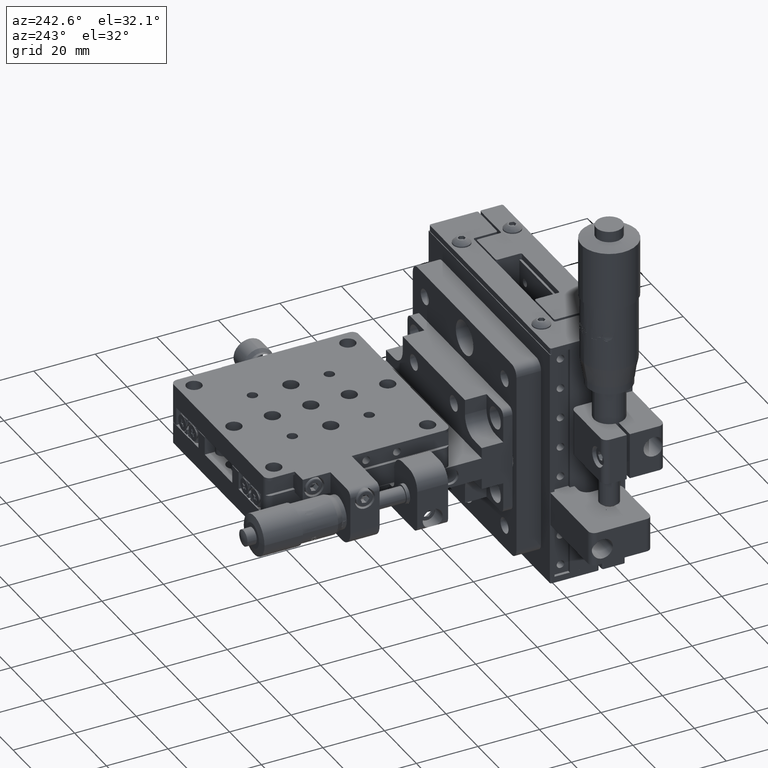
[diagram: clean part render]
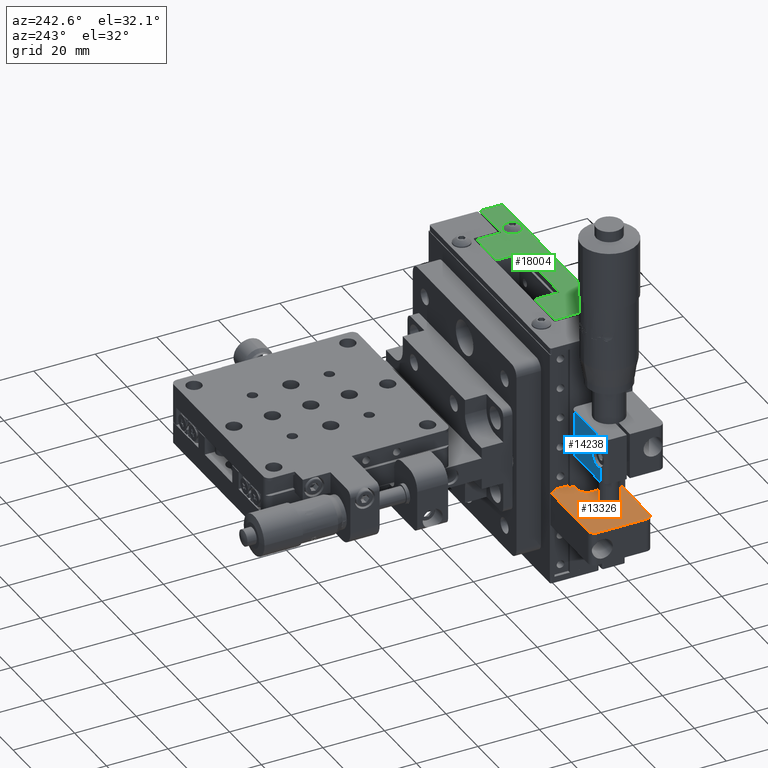
[diagram: same view with three faces highlighted in distinct colors, each labeled with its STEP entity id]
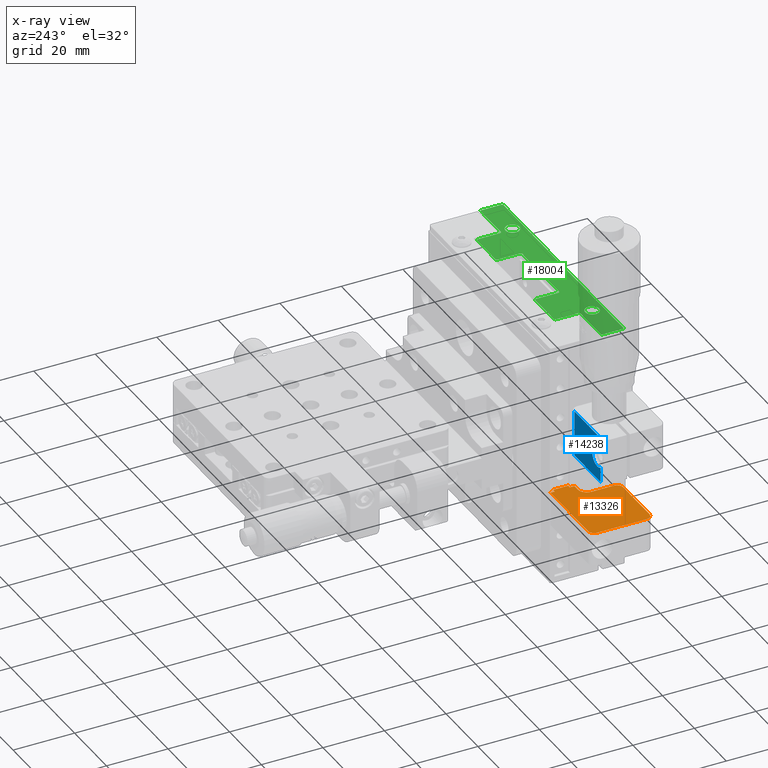
[diagram: x-ray of the same camera — body ghosted, the three highlighted faces saturated]
A machine part, auxiliary view with three faces highlighted in distinct colors.
The next image is the same camera in x-ray (body ghosted, the three faces saturated) — at least one of them is partly hidden behind the body in this view.
Their STEP definitions:

[orange] entity #13326 — the highlighted planar face has unit normal (0, -0, 1).
#67 = VERTEX_POINT ( 'NONE', #49749 ) ;
#473 = CARTESIAN_POINT ( 'NONE',  ( -43.00000000000022700, 6.300000000000067300, -9.000000000000079900 ) ) ;
#494 = ORIENTED_EDGE ( 'NONE', *, *, #57609, .T. ) ;
#703 = CIRCLE ( 'NONE', #41174, 2.000000000000001800 ) ;
#2076 = DIRECTION ( 'NONE',  ( -6.763865964687970900E-030, 1.000000000000000000, 1.665334536937734300E-016 ) ) ;
#2350 = ORIENTED_EDGE ( 'NONE', *, *, #14836, .F. ) ;
#2406 = VERTEX_POINT ( 'NONE', #25358 ) ;
#2820 = CIRCLE ( 'NONE', #16040, 3.000000000000002700 ) ;
#3248 = ORIENTED_EDGE ( 'NONE', *, *, #61585, .T. ) ;
#3545 = VERTEX_POINT ( 'NONE', #7010 ) ;
#4403 = AXIS2_PLACEMENT_3D ( 'NONE', #21713, #57077, #26808 ) ;
#5183 = ORIENTED_EDGE ( 'NONE', *, *, #57920, .T. ) ;
#5719 = LINE ( 'NONE', #473, #19179 ) ;
#5957 = EDGE_CURVE ( 'NONE', #9582, #18124, #35135, .T. ) ;
#6551 = VECTOR ( 'NONE', #2076, 1000.000000000000000 ) ;
#7010 = CARTESIAN_POINT ( 'NONE',  ( -38.00000000000022700, 16.50000000000006000, -9.000000000000078200 ) ) ;
#8257 = DIRECTION ( 'NONE',  ( 1.000000000000000000, 2.483679256281779400E-030, -5.551115123125384000E-017 ) ) ;
#9582 = VERTEX_POINT ( 'NONE', #29175 ) ;
#10372 = VECTOR ( 'NONE', #44894, 1000.000000000000000 ) ;
#13136 = DIRECTION ( 'NONE',  ( 5.551115123126540700E-017, -5.551115123125782700E-017, 1.000000000000000000 ) ) ;
#13208 = VERTEX_POINT ( 'NONE', #62117 ) ;
#13224 = CARTESIAN_POINT ( 'NONE',  ( -61.50000000000022700, 6.300000000000067300, -9.000000000000078200 ) ) ;
#13326 = ADVANCED_FACE ( 'NONE', ( #20447, #45748 ), #58131, .T. ) ;
#13550 = CARTESIAN_POINT ( 'NONE',  ( -38.00000000000015600, 18.00000000000005700, -9.000000000000078200 ) ) ;
#14595 = CIRCLE ( 'NONE', #4403, 2.000000000000001800 ) ;
#14653 = DIRECTION ( 'NONE',  ( -1.000000000000000000, -2.483679256281779400E-030, 5.551115123125384000E-017 ) ) ;
#14836 = EDGE_CURVE ( 'NONE', #23698, #64247, #15539, .T. ) ;
#14897 = VECTOR ( 'NONE', #63500, 1000.000000000000000 ) ;
#15539 = CIRCLE ( 'NONE', #32314, 3.000000000000002700 ) ;
#16040 = AXIS2_PLACEMENT_3D ( 'NONE', #22214, #57575, #27306 ) ;
#16739 = CARTESIAN_POINT ( 'NONE',  ( -38.00000000000022700, 24.30000000000007200, -9.000000000000078200 ) ) ;
#16995 = ORIENTED_EDGE ( 'NONE', *, *, #53604, .T. ) ;
#17961 = CARTESIAN_POINT ( 'NONE',  ( -37.00000000000022700, 23.00000000000006000, -9.000000000000078200 ) ) ;
#18124 = VERTEX_POINT ( 'NONE', #30327 ) ;
#18310 = DIRECTION ( 'NONE',  ( -1.000000000000000000, -2.483679256281779400E-030, 5.551115123125384000E-017 ) ) ;
#18440 = CARTESIAN_POINT ( 'NONE',  ( -61.50000000000016300, 22.30000000000006800, -9.000000000000074600 ) ) ;
#18598 = CARTESIAN_POINT ( 'NONE',  ( -54.50000000000022000, 12.30000000000007000, -9.000000000000078200 ) ) ;
#18845 = EDGE_CURVE ( 'NONE', #64247, #23698, #28451, .T. ) ;
#19179 = VECTOR ( 'NONE', #30840, 1000.000000000000000 ) ;
#19776 = CARTESIAN_POINT ( 'NONE',  ( -37.00000000000022700, 23.00000000000006000, -9.000000000000078200 ) ) ;
#20186 = VECTOR ( 'NONE', #51870, 1000.000000000000000 ) ;
#20447 = FACE_BOUND ( 'NONE', #33681, .T. ) ;
#21673 = VECTOR ( 'NONE', #47802, 1000.000000000000000 ) ;
#21713 = CARTESIAN_POINT ( 'NONE',  ( -45.00000000000022700, 6.300000000000067300, -9.000000000000079900 ) ) ;
#21952 = EDGE_CURVE ( 'NONE', #13208, #67, #5719, .T. ) ;
#22075 = ORIENTED_EDGE ( 'NONE', *, *, #59936, .T. ) ;
#22214 = CARTESIAN_POINT ( 'NONE',  ( -40.00000000000018500, 13.50000000000005700, -9.000000000000078200 ) ) ;
#22483 = EDGE_CURVE ( 'NONE', #3545, #57793, #37272, .T. ) ;
#22488 = ORIENTED_EDGE ( 'NONE', *, *, #21952, .T. ) ;
#22687 = CARTESIAN_POINT ( 'NONE',  ( -51.50000000000022000, 12.30000000000007000, -9.000000000000078200 ) ) ;
#22942 = VERTEX_POINT ( 'NONE', #65335 ) ;
#23093 = EDGE_CURVE ( 'NONE', #57793, #53868, #46595, .T. ) ;
#23539 = DIRECTION ( 'NONE',  ( -1.000000000000000000, 0.0000000000000000000, 0.0000000000000000000 ) ) ;
#23698 = VERTEX_POINT ( 'NONE', #18598 ) ;
#24028 = EDGE_CURVE ( 'NONE', #26526, #3545, #41694, .T. ) ;
#24276 = CARTESIAN_POINT ( 'NONE',  ( -40.00000000000018500, 16.50000000000006000, -9.000000000000078200 ) ) ;
#25271 = CARTESIAN_POINT ( 'NONE',  ( -51.50000000000022000, 12.30000000000007000, -9.000000000000078200 ) ) ;
#25358 = CARTESIAN_POINT ( 'NONE',  ( -45.00000000000022700, 4.300000000000067300, -9.000000000000079900 ) ) ;
#26485 = CARTESIAN_POINT ( 'NONE',  ( -61.50000000000022700, 4.300000000000067300, -9.000000000000078200 ) ) ;
#26526 = VERTEX_POINT ( 'NONE', #24276 ) ;
#26808 = DIRECTION ( 'NONE',  ( -1.000000000000000000, 0.0000000000000000000, 0.0000000000000000000 ) ) ;
#27306 = DIRECTION ( 'NONE',  ( -1.000000000000000000, 6.360652745248286900E-015, 0.0000000000000000000 ) ) ;
#27610 = CARTESIAN_POINT ( 'NONE',  ( -48.50000000000021300, 12.30000000000007000, -9.000000000000078200 ) ) ;
#27802 = DIRECTION ( 'NONE',  ( -1.000000000000000000, 0.0000000000000000000, 0.0000000000000000000 ) ) ;
#28394 = LINE ( 'NONE', #17961, #14897 ) ;
#28451 = CIRCLE ( 'NONE', #34129, 3.000000000000002700 ) ;
#29004 = LINE ( 'NONE', #26485, #52675 ) ;
#29175 = CARTESIAN_POINT ( 'NONE',  ( -63.50000000000017100, 22.30000000000006800, -9.000000000000074600 ) ) ;
#30311 = VERTEX_POINT ( 'NONE', #55092 ) ;
#30327 = CARTESIAN_POINT ( 'NONE',  ( -63.50000000000022000, 6.300000000000067300, -9.000000000000078200 ) ) ;
#30351 = DIRECTION ( 'NONE',  ( -1.000000000000000000, 0.0000000000000000000, 0.0000000000000000000 ) ) ;
#30840 = DIRECTION ( 'NONE',  ( 5.612340657572020100E-015, 1.000000000000000000, 1.665334536937731400E-016 ) ) ;
#32116 = CIRCLE ( 'NONE', #50578, 1.999999999999994900 ) ;
#32314 = AXIS2_PLACEMENT_3D ( 'NONE', #25271, #60601, #30351 ) ;
#32587 = CARTESIAN_POINT ( 'NONE',  ( -63.50000000000017100, 22.30000000000006800, -9.000000000000074600 ) ) ;
#33183 = EDGE_CURVE ( 'NONE', #47038, #9582, #703, .T. ) ;
#33669 = CARTESIAN_POINT ( 'NONE',  ( -61.50000000000016300, 24.30000000000007200, -9.000000000000074600 ) ) ;
#33681 = EDGE_LOOP ( 'NONE', ( #2350, #35503 ) ) ;
#34129 = AXIS2_PLACEMENT_3D ( 'NONE', #22687, #58050, #27802 ) ;
#35135 = LINE ( 'NONE', #32587, #21673 ) ;
#35503 = ORIENTED_EDGE ( 'NONE', *, *, #18845, .F. ) ;
#36000 = ORIENTED_EDGE ( 'NONE', *, *, #33183, .T. ) ;
#36795 = ORIENTED_EDGE ( 'NONE', *, *, #24028, .T. ) ;
#36969 = VECTOR ( 'NONE', #8257, 1000.000000000000000 ) ;
#37272 = LINE ( 'NONE', #59934, #10372 ) ;
#37299 = DIRECTION ( 'NONE',  ( 1.000000000000000000, 2.483679256281779400E-030, -5.551115123125384000E-017 ) ) ;
#38926 = LINE ( 'NONE', #19776, #64218 ) ;
#39356 = CARTESIAN_POINT ( 'NONE',  ( -37.00000000000022000, 18.00000000000005700, -9.000000000000078200 ) ) ;
#41174 = AXIS2_PLACEMENT_3D ( 'NONE', #18440, #53775, #23539 ) ;
#41685 = DIRECTION ( 'NONE',  ( 1.000000000000000000, 2.483679256281779400E-030, -5.551115123125384000E-017 ) ) ;
#41694 = LINE ( 'NONE', #43609, #36969 ) ;
#42650 = VERTEX_POINT ( 'NONE', #51465 ) ;
#43430 = CARTESIAN_POINT ( 'NONE',  ( -61.50000000000022700, 6.300000000000067300, -9.000000000000078200 ) ) ;
#43609 = CARTESIAN_POINT ( 'NONE',  ( -38.00000000000022700, 16.50000000000006000, -9.000000000000078200 ) ) ;
#44079 = EDGE_LOOP ( 'NONE', ( #22075, #47198, #16995, #22488, #47165, #36795, #57569, #65051, #3248, #5183, #494, #63135, #36000, #46119 ) ) ;
#44894 = DIRECTION ( 'NONE',  ( 4.741577501003270000E-014, 1.000000000000000000, 1.665334536937708200E-016 ) ) ;
#45748 = FACE_OUTER_BOUND ( 'NONE', #44079, .T. ) ;
#46119 = ORIENTED_EDGE ( 'NONE', *, *, #5957, .T. ) ;
#46282 = CARTESIAN_POINT ( 'NONE',  ( -38.00000000000022700, 23.00000000000006000, -9.000000000000078200 ) ) ;
#46595 = LINE ( 'NONE', #57615, #58451 ) ;
#46913 = LINE ( 'NONE', #62699, #6551 ) ;
#47038 = VERTEX_POINT ( 'NONE', #33669 ) ;
#47165 = ORIENTED_EDGE ( 'NONE', *, *, #49930, .T. ) ;
#47198 = ORIENTED_EDGE ( 'NONE', *, *, #59740, .T. ) ;
#47802 = DIRECTION ( 'NONE',  ( -3.577867169202156700E-015, -1.000000000000000000, -1.665334536937732600E-016 ) ) ;
#48521 = DIRECTION ( 'NONE',  ( -1.000000000000000000, 0.0000000000000000000, 0.0000000000000000000 ) ) ;
#48598 = DIRECTION ( 'NONE',  ( 5.551115123125384000E-017, -5.551115123125782700E-017, 1.000000000000000000 ) ) ;
#49484 = AXIS2_PLACEMENT_3D ( 'NONE', #13224, #48598, #18310 ) ;
#49749 = CARTESIAN_POINT ( 'NONE',  ( -43.00000000000018500, 13.50000000000007500, -9.000000000000078200 ) ) ;
#49930 = EDGE_CURVE ( 'NONE', #67, #26526, #2820, .T. ) ;
#50578 = AXIS2_PLACEMENT_3D ( 'NONE', #43430, #13136, #48521 ) ;
#51465 = CARTESIAN_POINT ( 'NONE',  ( -61.50000000000022700, 4.300000000000067300, -9.000000000000078200 ) ) ;
#51870 = DIRECTION ( 'NONE',  ( -1.000000000000000000, -2.483679256281779400E-030, 5.551115123125384000E-017 ) ) ;
#52675 = VECTOR ( 'NONE', #41685, 1000.000000000000000 ) ;
#53604 = EDGE_CURVE ( 'NONE', #2406, #13208, #14595, .T. ) ;
#53775 = DIRECTION ( 'NONE',  ( 5.551115123126540700E-017, -5.551115123125782700E-017, 1.000000000000000000 ) ) ;
#53868 = VERTEX_POINT ( 'NONE', #39356 ) ;
#55092 = CARTESIAN_POINT ( 'NONE',  ( -37.00000000000022700, 23.00000000000006000, -9.000000000000078200 ) ) ;
#55356 = VERTEX_POINT ( 'NONE', #46282 ) ;
#56253 = EDGE_CURVE ( 'NONE', #22942, #47038, #60550, .T. ) ;
#57077 = DIRECTION ( 'NONE',  ( 5.551115123126540700E-017, -5.551115123125782700E-017, 1.000000000000000000 ) ) ;
#57569 = ORIENTED_EDGE ( 'NONE', *, *, #22483, .T. ) ;
#57575 = DIRECTION ( 'NONE',  ( -5.551115123126540700E-017, 5.551115123125782700E-017, -1.000000000000000000 ) ) ;
#57609 = EDGE_CURVE ( 'NONE', #55356, #22942, #46913, .T. ) ;
#57615 = CARTESIAN_POINT ( 'NONE',  ( -37.00000000000022000, 18.00000000000005700, -9.000000000000078200 ) ) ;
#57793 = VERTEX_POINT ( 'NONE', #13550 ) ;
#57920 = EDGE_CURVE ( 'NONE', #30311, #55356, #38926, .T. ) ;
#58050 = DIRECTION ( 'NONE',  ( 5.551115123126540700E-017, -5.551115123125782700E-017, 1.000000000000000000 ) ) ;
#58131 = PLANE ( 'NONE',  #49484 ) ;
#58451 = VECTOR ( 'NONE', #37299, 1000.000000000000000 ) ;
#59740 = EDGE_CURVE ( 'NONE', #42650, #2406, #29004, .T. ) ;
#59934 = CARTESIAN_POINT ( 'NONE',  ( -38.00000000000022700, 16.50000000000006000, -9.000000000000078200 ) ) ;
#59936 = EDGE_CURVE ( 'NONE', #18124, #42650, #32116, .T. ) ;
#60550 = LINE ( 'NONE', #16739, #20186 ) ;
#60601 = DIRECTION ( 'NONE',  ( 5.551115123126540700E-017, -5.551115123125782700E-017, 1.000000000000000000 ) ) ;
#61585 = EDGE_CURVE ( 'NONE', #53868, #30311, #28394, .T. ) ;
#62117 = CARTESIAN_POINT ( 'NONE',  ( -43.00000000000022700, 6.300000000000067300, -9.000000000000079900 ) ) ;
#62699 = CARTESIAN_POINT ( 'NONE',  ( -38.00000000000022700, 24.30000000000007200, -9.000000000000078200 ) ) ;
#63135 = ORIENTED_EDGE ( 'NONE', *, *, #56253, .T. ) ;
#63500 = DIRECTION ( 'NONE',  ( -1.387778780781452000E-015, 1.000000000000000000, 1.665334536937735100E-016 ) ) ;
#64218 = VECTOR ( 'NONE', #14653, 1000.000000000000000 ) ;
#64247 = VERTEX_POINT ( 'NONE', #27610 ) ;
#65051 = ORIENTED_EDGE ( 'NONE', *, *, #23093, .T. ) ;
#65335 = CARTESIAN_POINT ( 'NONE',  ( -38.00000000000022700, 24.30000000000007200, -9.000000000000078200 ) ) ;

[blue] entity #14238 — the highlighted planar face has unit normal (-0, 1, 0).
#400 = VECTOR ( 'NONE', #51743, 1000.000000000000000 ) ;
#565 = AXIS2_PLACEMENT_3D ( 'NONE', #13524, #48917, #18637 ) ;
#4138 = CARTESIAN_POINT ( 'NONE',  ( -61.50000000000007100, 20.19999999999940200, 28.50000000000001400 ) ) ;
#6231 = VERTEX_POINT ( 'NONE', #64770 ) ;
#6319 = VECTOR ( 'NONE', #32429, 1000.000000000000000 ) ;
#6684 = VECTOR ( 'NONE', #34515, 1000.000000000000000 ) ;
#6731 = VERTEX_POINT ( 'NONE', #49846 ) ;
#6839 = CIRCLE ( 'NONE', #565, 3.250000000000006200 ) ;
#8384 = EDGE_LOOP ( 'NONE', ( #59353, #25252, #25294, #25116, #60535, #13750, #50315, #26522 ) ) ;
#9088 = EDGE_CURVE ( 'NONE', #62216, #39736, #35801, .T. ) ;
#9373 = DIRECTION ( 'NONE',  ( -1.396345096814196700E-015, 1.000000000000000000, 5.551115123125782700E-017 ) ) ;
#11419 = CIRCLE ( 'NONE', #40825, 3.250000000000006200 ) ;
#12291 = LINE ( 'NONE', #51966, #400 ) ;
#12408 = PLANE ( 'NONE',  #15712 ) ;
#13524 = CARTESIAN_POINT ( 'NONE',  ( -59.50000000000006400, 20.19999999999940200, 13.99999999999996800 ) ) ;
#13750 = ORIENTED_EDGE ( 'NONE', *, *, #16824, .F. ) ;
#13958 = FACE_OUTER_BOUND ( 'NONE', #8384, .T. ) ;
#14238 = ADVANCED_FACE ( 'NONE', ( #13958 ), #12408, .T. ) ;
#15214 = VECTOR ( 'NONE', #19483, 1000.000000000000000 ) ;
#15558 = EDGE_CURVE ( 'NONE', #6231, #62216, #60148, .T. ) ;
#15712 = AXIS2_PLACEMENT_3D ( 'NONE', #17733, #53085, #22833 ) ;
#16824 = EDGE_CURVE ( 'NONE', #17681, #47430, #57472, .T. ) ;
#17681 = VERTEX_POINT ( 'NONE', #61515 ) ;
#17733 = CARTESIAN_POINT ( 'NONE',  ( -45.00000000000006400, 20.19999999999942700, 28.50000000000001100 ) ) ;
#18637 = DIRECTION ( 'NONE',  ( 0.0000000000000000000, 0.0000000000000000000, -1.000000000000000000 ) ) ;
#18700 = VECTOR ( 'NONE', #34477, 1000.000000000000000 ) ;
#19483 = DIRECTION ( 'NONE',  ( -3.538501282865090600E-016, 5.551115123125782700E-017, -1.000000000000000000 ) ) ;
#21670 = CARTESIAN_POINT ( 'NONE',  ( -59.50000000000006400, 20.19999999999940200, 13.99999999999996800 ) ) ;
#22833 = DIRECTION ( 'NONE',  ( -3.538501282865090600E-016, 5.551115123125782700E-017, -1.000000000000000000 ) ) ;
#25059 = CARTESIAN_POINT ( 'NONE',  ( -61.50000000000007100, 20.19999999999940200, 28.50000000000001400 ) ) ;
#25116 = ORIENTED_EDGE ( 'NONE', *, *, #34769, .T. ) ;
#25252 = ORIENTED_EDGE ( 'NONE', *, *, #9088, .F. ) ;
#25294 = ORIENTED_EDGE ( 'NONE', *, *, #15558, .F. ) ;
#26522 = ORIENTED_EDGE ( 'NONE', *, *, #47421, .F. ) ;
#26764 = DIRECTION ( 'NONE',  ( 0.0000000000000000000, 0.0000000000000000000, -1.000000000000000000 ) ) ;
#29234 = CARTESIAN_POINT ( 'NONE',  ( -45.00000000000007100, 20.19999999999942000, 6.499999999999937800 ) ) ;
#30721 = EDGE_CURVE ( 'NONE', #47430, #36659, #33621, .T. ) ;
#32429 = DIRECTION ( 'NONE',  ( -1.000000000000000000, -1.396345096814188600E-015, 4.807811143335924900E-016 ) ) ;
#33621 = LINE ( 'NONE', #29234, #6684 ) ;
#34468 = EDGE_CURVE ( 'NONE', #39736, #64408, #6839, .T. ) ;
#34477 = DIRECTION ( 'NONE',  ( -3.538501282865090600E-016, 5.551115123125782700E-017, -1.000000000000000000 ) ) ;
#34515 = DIRECTION ( 'NONE',  ( 1.000000000000000000, 1.396345096814188600E-015, -3.538501282865087200E-016 ) ) ;
#34769 = EDGE_CURVE ( 'NONE', #6231, #36659, #12291, .T. ) ;
#35210 = CARTESIAN_POINT ( 'NONE',  ( -61.50000000000007100, 20.19999999999940200, 16.56173769148987100 ) ) ;
#35801 = LINE ( 'NONE', #25059, #15214 ) ;
#36659 = VERTEX_POINT ( 'NONE', #42330 ) ;
#38674 = CARTESIAN_POINT ( 'NONE',  ( -61.50000000000007100, 20.19999999999940600, 21.49999999999999300 ) ) ;
#39678 = CARTESIAN_POINT ( 'NONE',  ( -59.50000000000006400, 20.19999999999940200, 13.99999999999996800 ) ) ;
#39736 = VERTEX_POINT ( 'NONE', #35210 ) ;
#40825 = AXIS2_PLACEMENT_3D ( 'NONE', #21670, #57028, #26764 ) ;
#42330 = CARTESIAN_POINT ( 'NONE',  ( -45.00000000000007100, 20.19999999999942000, 6.499999999999937800 ) ) ;
#43810 = AXIS2_PLACEMENT_3D ( 'NONE', #39678, #9373, #44741 ) ;
#44741 = DIRECTION ( 'NONE',  ( 0.0000000000000000000, 0.0000000000000000000, -1.000000000000000000 ) ) ;
#47421 = EDGE_CURVE ( 'NONE', #64408, #6731, #11419, .T. ) ;
#47430 = VERTEX_POINT ( 'NONE', #51927 ) ;
#47894 = EDGE_CURVE ( 'NONE', #6731, #17681, #57172, .T. ) ;
#48917 = DIRECTION ( 'NONE',  ( -1.396345096814196700E-015, 1.000000000000000000, 5.551115123125782700E-017 ) ) ;
#49846 = CARTESIAN_POINT ( 'NONE',  ( -59.50000000000006400, 20.19999999999940200, 10.74999999999997200 ) ) ;
#50315 = ORIENTED_EDGE ( 'NONE', *, *, #47894, .F. ) ;
#51743 = DIRECTION ( 'NONE',  ( -3.538501282865090600E-016, 5.551115123125782700E-017, -1.000000000000000000 ) ) ;
#51927 = CARTESIAN_POINT ( 'NONE',  ( -61.50000000000007800, 20.19999999999939500, 6.499999999999944000 ) ) ;
#51966 = CARTESIAN_POINT ( 'NONE',  ( -45.00000000000006400, 20.19999999999942700, 28.50000000000001100 ) ) ;
#52508 = CARTESIAN_POINT ( 'NONE',  ( -63.50000000000007100, 20.19999999999940200, 21.49999999999999300 ) ) ;
#53085 = DIRECTION ( 'NONE',  ( -1.396345096814196500E-015, 1.000000000000000000, 5.551115123125832000E-017 ) ) ;
#54951 = CARTESIAN_POINT ( 'NONE',  ( -59.50000000000006400, 20.19999999999940200, 17.24999999999996400 ) ) ;
#57028 = DIRECTION ( 'NONE',  ( -1.396345096814196700E-015, 1.000000000000000000, 5.551115123125782700E-017 ) ) ;
#57172 = CIRCLE ( 'NONE', #43810, 3.250000000000006200 ) ;
#57472 = LINE ( 'NONE', #4138, #18700 ) ;
#59353 = ORIENTED_EDGE ( 'NONE', *, *, #34468, .F. ) ;
#60148 = LINE ( 'NONE', #52508, #6319 ) ;
#60535 = ORIENTED_EDGE ( 'NONE', *, *, #30721, .F. ) ;
#61515 = CARTESIAN_POINT ( 'NONE',  ( -61.50000000000007800, 20.19999999999939900, 11.43826230851006500 ) ) ;
#62216 = VERTEX_POINT ( 'NONE', #38674 ) ;
#64408 = VERTEX_POINT ( 'NONE', #54951 ) ;
#64770 = CARTESIAN_POINT ( 'NONE',  ( -45.00000000000005700, 20.19999999999942700, 21.49999999999998200 ) ) ;

[green] entity #18004 — the highlighted planar face has unit normal (0, 0, 1).
#55 = CARTESIAN_POINT ( 'NONE',  ( 12.00000000000000500, 15.49999999999999500, 40.00000000000000000 ) ) ;
#267 = DIRECTION ( 'NONE',  ( 0.0000000000000000000, 0.0000000000000000000, 1.000000000000000000 ) ) ;
#320 = CIRCLE ( 'NONE', #48921, 2.250000000000001800 ) ;
#1664 = CARTESIAN_POINT ( 'NONE',  ( 24.50000000000000400, 15.99999999999999300, 40.00000000000000000 ) ) ;
#1803 = ORIENTED_EDGE ( 'NONE', *, *, #2201, .F. ) ;
#2023 = DIRECTION ( 'NONE',  ( 1.000000000000000000, 0.0000000000000000000, 0.0000000000000000000 ) ) ;
#2060 = DIRECTION ( 'NONE',  ( -1.000000000000000000, 0.0000000000000000000, 0.0000000000000000000 ) ) ;
#2201 = EDGE_CURVE ( 'NONE', #2886, #25422, #26978, .T. ) ;
#2696 = CARTESIAN_POINT ( 'NONE',  ( 24.50000000000000400, 15.49999999999999500, 40.00000000000000000 ) ) ;
#2886 = VERTEX_POINT ( 'NONE', #53715 ) ;
#3022 = CARTESIAN_POINT ( 'NONE',  ( 24.00000000000000400, 15.99999999999999300, 40.00000000000000000 ) ) ;
#3503 = VECTOR ( 'NONE', #37087, 1000.000000000000000 ) ;
#3568 = LINE ( 'NONE', #25001, #55800 ) ;
#3924 = VERTEX_POINT ( 'NONE', #60706 ) ;
#4211 = EDGE_CURVE ( 'NONE', #17094, #11028, #37828, .T. ) ;
#4379 = LINE ( 'NONE', #54633, #29750 ) ;
#4771 = ORIENTED_EDGE ( 'NONE', *, *, #63385, .T. ) ;
#4838 = VECTOR ( 'NONE', #7146, 1000.000000000000000 ) ;
#5075 = CARTESIAN_POINT ( 'NONE',  ( 25.00000000000000400, 4.000000000000000900, 40.00000000000000000 ) ) ;
#5227 = AXIS2_PLACEMENT_3D ( 'NONE', #24365, #59700, #29456 ) ;
#5727 = EDGE_CURVE ( 'NONE', #49312, #54628, #43841, .T. ) ;
#5791 = EDGE_CURVE ( 'NONE', #26761, #40156, #42259, .T. ) ;
#6037 = CARTESIAN_POINT ( 'NONE',  ( 27.25000000000000700, 4.000000000000000900, 40.00000000000000000 ) ) ;
#6078 = DIRECTION ( 'NONE',  ( 0.0000000000000000000, 0.0000000000000000000, 1.000000000000000000 ) ) ;
#6533 = CARTESIAN_POINT ( 'NONE',  ( 11.50000000000000400, 7.800000000000001600, 40.00000000000000000 ) ) ;
#6606 = DIRECTION ( 'NONE',  ( -0.0000000000000000000, -0.0000000000000000000, -1.000000000000000000 ) ) ;
#7146 = DIRECTION ( 'NONE',  ( 0.0000000000000000000, 1.000000000000000000, 0.0000000000000000000 ) ) ;
#7374 = ORIENTED_EDGE ( 'NONE', *, *, #8047, .T. ) ;
#7428 = FACE_BOUND ( 'NONE', #17913, .T. ) ;
#7749 = VECTOR ( 'NONE', #23750, 1000.000000000000000 ) ;
#7915 = ORIENTED_EDGE ( 'NONE', *, *, #28373, .F. ) ;
#8047 = EDGE_CURVE ( 'NONE', #3924, #15747, #3568, .T. ) ;
#8305 = EDGE_CURVE ( 'NONE', #54628, #37636, #42294, .T. ) ;
#8932 = CIRCLE ( 'NONE', #45959, 0.5000000000000004400 ) ;
#9527 = AXIS2_PLACEMENT_3D ( 'NONE', #27007, #62326, #32095 ) ;
#9605 = DIRECTION ( 'NONE',  ( 0.0000000000000000000, 0.0000000000000000000, 1.000000000000000000 ) ) ;
#9827 = CARTESIAN_POINT ( 'NONE',  ( 24.00000000000000400, 15.49999999999999500, 40.00000000000000000 ) ) ;
#10178 = DIRECTION ( 'NONE',  ( 1.000000000000000000, 0.0000000000000000000, 0.0000000000000000000 ) ) ;
#10731 = CIRCLE ( 'NONE', #47573, 0.5000000000000004400 ) ;
#11028 = VERTEX_POINT ( 'NONE', #53492 ) ;
#11724 = LINE ( 'NONE', #14944, #63947 ) ;
#12193 = ORIENTED_EDGE ( 'NONE', *, *, #16566, .T. ) ;
#12370 = ORIENTED_EDGE ( 'NONE', *, *, #38848, .T. ) ;
#12414 = LINE ( 'NONE', #53497, #25912 ) ;
#12720 = AXIS2_PLACEMENT_3D ( 'NONE', #51502, #21240, #56604 ) ;
#13508 = CARTESIAN_POINT ( 'NONE',  ( 24.50000000000000000, 8.300000000000002500, 40.00000000000000000 ) ) ;
#13757 = DIRECTION ( 'NONE',  ( 0.0000000000000000000, -1.000000000000000000, 0.0000000000000000000 ) ) ;
#13984 = CIRCLE ( 'NONE', #9527, 0.5000000000000004400 ) ;
#14882 = DIRECTION ( 'NONE',  ( 1.000000000000000000, 0.0000000000000000000, 0.0000000000000000000 ) ) ;
#14927 = VERTEX_POINT ( 'NONE', #31007 ) ;
#14944 = CARTESIAN_POINT ( 'NONE',  ( 24.50000000000000000, 7.800000000000001600, 40.00000000000000000 ) ) ;
#15387 = DIRECTION ( 'NONE',  ( -2.115516434118058900E-016, -1.000000000000000000, -0.0000000000000000000 ) ) ;
#15747 = VERTEX_POINT ( 'NONE', #33952 ) ;
#15968 = ORIENTED_EDGE ( 'NONE', *, *, #8305, .T. ) ;
#16067 = DIRECTION ( 'NONE',  ( 0.0000000000000000000, 0.0000000000000000000, 1.000000000000000000 ) ) ;
#16566 = EDGE_CURVE ( 'NONE', #60113, #58231, #13984, .T. ) ;
#16992 = AXIS2_PLACEMENT_3D ( 'NONE', #57962, #27702, #63037 ) ;
#17094 = VERTEX_POINT ( 'NONE', #6533 ) ;
#17538 = EDGE_CURVE ( 'NONE', #51413, #64833, #10731, .T. ) ;
#17758 = DIRECTION ( 'NONE',  ( -1.000000000000000000, -0.0000000000000000000, -0.0000000000000000000 ) ) ;
#17913 = EDGE_LOOP ( 'NONE', ( #23076, #1803 ) ) ;
#18004 = ADVANCED_FACE ( 'NONE', ( #47778, #34363, #7428 ), #64546, .T. ) ;
#18318 = CARTESIAN_POINT ( 'NONE',  ( -38.00000000000000700, 7.300000000000000700, 40.00000000000000000 ) ) ;
#18429 = CARTESIAN_POINT ( 'NONE',  ( 12.50000000000000500, 15.49999999999999500, 40.00000000000000000 ) ) ;
#18482 = VERTEX_POINT ( 'NONE', #28933 ) ;
#18771 = CARTESIAN_POINT ( 'NONE',  ( 37.50000000000000700, 7.800000000000001600, 40.00000000000000000 ) ) ;
#19318 = ORIENTED_EDGE ( 'NONE', *, *, #44601, .T. ) ;
#19505 = EDGE_CURVE ( 'NONE', #58231, #49312, #12414, .T. ) ;
#20066 = DIRECTION ( 'NONE',  ( 0.0000000000000000000, 0.0000000000000000000, 1.000000000000000000 ) ) ;
#20110 = ORIENTED_EDGE ( 'NONE', *, *, #63678, .F. ) ;
#20362 = CARTESIAN_POINT ( 'NONE',  ( -38.00000000000000700, 0.9000000000000014700, 40.00000000000000000 ) ) ;
#20761 = CARTESIAN_POINT ( 'NONE',  ( -22.74999999999999600, 4.000000000000000900, 40.00000000000000000 ) ) ;
#20859 = ORIENTED_EDGE ( 'NONE', *, *, #36667, .T. ) ;
#20928 = AXIS2_PLACEMENT_3D ( 'NONE', #36394, #6078, #41456 ) ;
#20969 = CIRCLE ( 'NONE', #47022, 0.5000000000000004400 ) ;
#21240 = DIRECTION ( 'NONE',  ( 0.0000000000000000000, 0.0000000000000000000, 1.000000000000000000 ) ) ;
#21548 = VERTEX_POINT ( 'NONE', #59340 ) ;
#21690 = ORIENTED_EDGE ( 'NONE', *, *, #59637, .T. ) ;
#21907 = CIRCLE ( 'NONE', #62204, 0.5000000000000004400 ) ;
#22129 = DIRECTION ( 'NONE',  ( 0.0000000000000000000, 0.0000000000000000000, 1.000000000000000000 ) ) ;
#22280 = ORIENTED_EDGE ( 'NONE', *, *, #62255, .T. ) ;
#23076 = ORIENTED_EDGE ( 'NONE', *, *, #60544, .F. ) ;
#23530 = DIRECTION ( 'NONE',  ( 1.000000000000000000, 0.0000000000000000000, 0.0000000000000000000 ) ) ;
#23580 = ORIENTED_EDGE ( 'NONE', *, *, #5727, .T. ) ;
#23583 = AXIS2_PLACEMENT_3D ( 'NONE', #46372, #16067, #53383 ) ;
#23750 = DIRECTION ( 'NONE',  ( -2.115516434118058900E-016, 1.000000000000000000, 0.0000000000000000000 ) ) ;
#24365 = CARTESIAN_POINT ( 'NONE',  ( 38.00000000000000700, 7.800000000000001600, 40.00000000000000000 ) ) ;
#24909 = ORIENTED_EDGE ( 'NONE', *, *, #25781, .T. ) ;
#25001 = CARTESIAN_POINT ( 'NONE',  ( -38.00000000000000700, 0.4000000000000010200, 40.00000000000000000 ) ) ;
#25399 = DIRECTION ( 'NONE',  ( -1.000000000000000000, -0.0000000000000000000, -0.0000000000000000000 ) ) ;
#25422 = VERTEX_POINT ( 'NONE', #6037 ) ;
#25781 = EDGE_CURVE ( 'NONE', #37158, #41594, #61867, .T. ) ;
#25912 = VECTOR ( 'NONE', #63909, 1000.000000000000000 ) ;
#26529 = CARTESIAN_POINT ( 'NONE',  ( 12.50000000000000900, 15.99999999999999300, 40.00000000000000000 ) ) ;
#26761 = VERTEX_POINT ( 'NONE', #51609 ) ;
#26978 = CIRCLE ( 'NONE', #23583, 2.250000000000001800 ) ;
#27007 = CARTESIAN_POINT ( 'NONE',  ( 25.00000000000000000, 8.300000000000002500, 40.00000000000000000 ) ) ;
#27020 = EDGE_CURVE ( 'NONE', #14927, #32280, #46523, .T. ) ;
#27074 = CIRCLE ( 'NONE', #48729, 0.5000000000000004400 ) ;
#27328 = CARTESIAN_POINT ( 'NONE',  ( -11.99999999999999800, 15.99999999999999300, 40.00000000000000000 ) ) ;
#27528 = CARTESIAN_POINT ( 'NONE',  ( -24.49999999999999300, 8.300000000000002500, 40.00000000000000000 ) ) ;
#27702 = DIRECTION ( 'NONE',  ( 0.0000000000000000000, 0.0000000000000000000, 1.000000000000000000 ) ) ;
#28373 = EDGE_CURVE ( 'NONE', #44254, #18482, #32767, .T. ) ;
#28703 = EDGE_CURVE ( 'NONE', #58716, #38273, #46224, .T. ) ;
#28933 = CARTESIAN_POINT ( 'NONE',  ( -27.25000000000000000, 4.000000000000000900, 40.00000000000000000 ) ) ;
#28960 = DIRECTION ( 'NONE',  ( 0.0000000000000000000, 0.0000000000000000000, 1.000000000000000000 ) ) ;
#29456 = DIRECTION ( 'NONE',  ( 1.000000000000000000, 0.0000000000000000000, -0.0000000000000000000 ) ) ;
#29750 = VECTOR ( 'NONE', #59754, 1000.000000000000000 ) ;
#29953 = CARTESIAN_POINT ( 'NONE',  ( -24.99999999999999300, 7.800000000000001600, 40.00000000000000000 ) ) ;
#30180 = CARTESIAN_POINT ( 'NONE',  ( -24.99999999999999300, 8.300000000000002500, 40.00000000000000000 ) ) ;
#30631 = CARTESIAN_POINT ( 'NONE',  ( -23.99999999999999600, 15.49999999999999500, 40.00000000000000000 ) ) ;
#31007 = CARTESIAN_POINT ( 'NONE',  ( -11.99999999999999600, 8.300000000000002500, 40.00000000000000000 ) ) ;
#32095 = DIRECTION ( 'NONE',  ( 1.000000000000000000, 0.0000000000000000000, 0.0000000000000000000 ) ) ;
#32280 = VERTEX_POINT ( 'NONE', #44447 ) ;
#32382 = DIRECTION ( 'NONE',  ( -0.0000000000000000000, -0.0000000000000000000, -1.000000000000000000 ) ) ;
#32426 = ORIENTED_EDGE ( 'NONE', *, *, #19505, .T. ) ;
#32767 = CIRCLE ( 'NONE', #20928, 2.250000000000001800 ) ;
#33952 = CARTESIAN_POINT ( 'NONE',  ( 37.50000000000000700, 0.4000000000000010200, 40.00000000000000000 ) ) ;
#34009 = ORIENTED_EDGE ( 'NONE', *, *, #49357, .T. ) ;
#34363 = FACE_OUTER_BOUND ( 'NONE', #48632, .T. ) ;
#34570 = VERTEX_POINT ( 'NONE', #44499 ) ;
#34924 = ORIENTED_EDGE ( 'NONE', *, *, #27020, .T. ) ;
#35147 = CIRCLE ( 'NONE', #16992, 2.250000000000001800 ) ;
#35243 = DIRECTION ( 'NONE',  ( 1.000000000000000000, 0.0000000000000000000, 0.0000000000000000000 ) ) ;
#35706 = DIRECTION ( 'NONE',  ( 1.000000000000000000, 0.0000000000000000000, 0.0000000000000000000 ) ) ;
#36394 = CARTESIAN_POINT ( 'NONE',  ( -24.99999999999999600, 4.000000000000000900, 40.00000000000000000 ) ) ;
#36580 = AXIS2_PLACEMENT_3D ( 'NONE', #9827, #45198, #14882 ) ;
#36667 = EDGE_CURVE ( 'NONE', #43387, #26761, #46541, .T. ) ;
#36917 = CARTESIAN_POINT ( 'NONE',  ( 11.50000000000000400, 8.300000000000002500, 40.00000000000000000 ) ) ;
#37087 = DIRECTION ( 'NONE',  ( -1.000000000000000000, 0.0000000000000000000, 0.0000000000000000000 ) ) ;
#37158 = VERTEX_POINT ( 'NONE', #42252 ) ;
#37461 = CARTESIAN_POINT ( 'NONE',  ( 38.00000000000000700, 0.4000000000000010200, 40.00000000000000000 ) ) ;
#37551 = VECTOR ( 'NONE', #15387, 1000.000000000000000 ) ;
#37636 = VERTEX_POINT ( 'NONE', #26529 ) ;
#37828 = LINE ( 'NONE', #53118, #51233 ) ;
#37960 = EDGE_CURVE ( 'NONE', #40876, #21548, #50967, .T. ) ;
#38142 = CARTESIAN_POINT ( 'NONE',  ( -12.49999999999999800, 15.99999999999999300, 40.00000000000000000 ) ) ;
#38273 = VERTEX_POINT ( 'NONE', #20362 ) ;
#38348 = CIRCLE ( 'NONE', #47609, 0.5000000000000004400 ) ;
#38848 = EDGE_CURVE ( 'NONE', #38273, #3924, #8932, .T. ) ;
#39294 = CARTESIAN_POINT ( 'NONE',  ( 38.00000000000000700, 0.9000000000000010200, 40.00000000000000000 ) ) ;
#39903 = CARTESIAN_POINT ( 'NONE',  ( -37.50000000000000700, 7.300000000000000700, 40.00000000000000000 ) ) ;
#40156 = VERTEX_POINT ( 'NONE', #60109 ) ;
#40199 = CARTESIAN_POINT ( 'NONE',  ( -24.49999999999999300, 7.800000000000001600, 40.00000000000000000 ) ) ;
#40409 = CARTESIAN_POINT ( 'NONE',  ( 12.00000000000000400, 7.800000000000001600, 40.00000000000000000 ) ) ;
#40480 = DIRECTION ( 'NONE',  ( 0.0000000000000000000, 0.0000000000000000000, 1.000000000000000000 ) ) ;
#40876 = VERTEX_POINT ( 'NONE', #55 ) ;
#41456 = DIRECTION ( 'NONE',  ( 1.000000000000000000, 0.0000000000000000000, 0.0000000000000000000 ) ) ;
#41594 = VERTEX_POINT ( 'NONE', #18771 ) ;
#41979 = DIRECTION ( 'NONE',  ( 1.000000000000000000, 0.0000000000000000000, 0.0000000000000000000 ) ) ;
#42150 = ORIENTED_EDGE ( 'NONE', *, *, #62945, .T. ) ;
#42252 = CARTESIAN_POINT ( 'NONE',  ( 38.00000000000000700, 7.300000000000000700, 40.00000000000000000 ) ) ;
#42259 = CIRCLE ( 'NONE', #63656, 0.5000000000000004400 ) ;
#42294 = LINE ( 'NONE', #1664, #3503 ) ;
#43387 = VERTEX_POINT ( 'NONE', #38142 ) ;
#43597 = LINE ( 'NONE', #37461, #4838 ) ;
#43841 = CIRCLE ( 'NONE', #36580, 0.5000000000000004400 ) ;
#44254 = VERTEX_POINT ( 'NONE', #20761 ) ;
#44447 = CARTESIAN_POINT ( 'NONE',  ( -11.99999999999999800, 15.49999999999999500, 40.00000000000000000 ) ) ;
#44499 = CARTESIAN_POINT ( 'NONE',  ( -37.50000000000000700, 7.800000000000001600, 40.00000000000000000 ) ) ;
#44601 = EDGE_CURVE ( 'NONE', #41594, #60113, #11724, .T. ) ;
#44967 = DIRECTION ( 'NONE',  ( 1.000000000000000000, 0.0000000000000000000, 0.0000000000000000000 ) ) ;
#45198 = DIRECTION ( 'NONE',  ( 0.0000000000000000000, 0.0000000000000000000, 1.000000000000000000 ) ) ;
#45959 = AXIS2_PLACEMENT_3D ( 'NONE', #50334, #20066, #55409 ) ;
#46187 = ORIENTED_EDGE ( 'NONE', *, *, #37960, .T. ) ;
#46224 = LINE ( 'NONE', #49156, #59667 ) ;
#46372 = CARTESIAN_POINT ( 'NONE',  ( 25.00000000000000400, 4.000000000000000900, 40.00000000000000000 ) ) ;
#46523 = LINE ( 'NONE', #53986, #7749 ) ;
#46541 = LINE ( 'NONE', #27328, #58395 ) ;
#46875 = ORIENTED_EDGE ( 'NONE', *, *, #58061, .T. ) ;
#47022 = AXIS2_PLACEMENT_3D ( 'NONE', #62651, #32382, #2023 ) ;
#47308 = AXIS2_PLACEMENT_3D ( 'NONE', #18429, #53762, #23530 ) ;
#47410 = ORIENTED_EDGE ( 'NONE', *, *, #4211, .T. ) ;
#47426 = EDGE_CURVE ( 'NONE', #21548, #17094, #38348, .T. ) ;
#47573 = AXIS2_PLACEMENT_3D ( 'NONE', #30180, #65488, #35243 ) ;
#47609 = AXIS2_PLACEMENT_3D ( 'NONE', #36917, #6606, #41979 ) ;
#47778 = FACE_BOUND ( 'NONE', #65525, .T. ) ;
#48099 = CIRCLE ( 'NONE', #47308, 0.5000000000000004400 ) ;
#48632 = EDGE_LOOP ( 'NONE', ( #52100, #12370, #7374, #22280, #46875, #24909, #19318, #12193, #32426, #23580, #15968, #34009, #46187, #61568, #47410, #42150, #34924, #4771, #20859, #54045, #21690, #56884, #49613, #50736 ) ) ;
#48729 = AXIS2_PLACEMENT_3D ( 'NONE', #39903, #9605, #44967 ) ;
#48921 = AXIS2_PLACEMENT_3D ( 'NONE', #5075, #40480, #10178 ) ;
#49156 = CARTESIAN_POINT ( 'NONE',  ( -38.00000000000000700, 7.800000000000001600, 40.00000000000000000 ) ) ;
#49312 = VERTEX_POINT ( 'NONE', #2696 ) ;
#49357 = EDGE_CURVE ( 'NONE', #37636, #40876, #48099, .T. ) ;
#49613 = ORIENTED_EDGE ( 'NONE', *, *, #50141, .T. ) ;
#50141 = EDGE_CURVE ( 'NONE', #64833, #34570, #4379, .T. ) ;
#50334 = CARTESIAN_POINT ( 'NONE',  ( -37.50000000000000700, 0.9000000000000010200, 40.00000000000000000 ) ) ;
#50736 = ORIENTED_EDGE ( 'NONE', *, *, #57896, .T. ) ;
#50967 = LINE ( 'NONE', #40409, #37551 ) ;
#51093 = VERTEX_POINT ( 'NONE', #39294 ) ;
#51233 = VECTOR ( 'NONE', #17758, 1000.000000000000000 ) ;
#51413 = VERTEX_POINT ( 'NONE', #27528 ) ;
#51502 = CARTESIAN_POINT ( 'NONE',  ( -12.49999999999999800, 15.49999999999999500, 40.00000000000000000 ) ) ;
#51512 = AXIS2_PLACEMENT_3D ( 'NONE', #52406, #22129, #57493 ) ;
#51609 = CARTESIAN_POINT ( 'NONE',  ( -23.99999999999999300, 15.99999999999999300, 40.00000000000000000 ) ) ;
#52100 = ORIENTED_EDGE ( 'NONE', *, *, #28703, .T. ) ;
#52406 = CARTESIAN_POINT ( 'NONE',  ( 37.50000000000000700, 7.300000000000000700, 40.00000000000000000 ) ) ;
#52474 = CIRCLE ( 'NONE', #12720, 0.5000000000000004400 ) ;
#53118 = CARTESIAN_POINT ( 'NONE',  ( -11.99999999999999600, 7.800000000000001600, 40.00000000000000000 ) ) ;
#53383 = DIRECTION ( 'NONE',  ( 1.000000000000000000, 0.0000000000000000000, 0.0000000000000000000 ) ) ;
#53475 = LINE ( 'NONE', #40199, #65347 ) ;
#53492 = CARTESIAN_POINT ( 'NONE',  ( -11.49999999999999600, 7.800000000000001600, 40.00000000000000000 ) ) ;
#53497 = CARTESIAN_POINT ( 'NONE',  ( 24.50000000000000000, 7.800000000000001600, 40.00000000000000000 ) ) ;
#53715 = CARTESIAN_POINT ( 'NONE',  ( 22.75000000000000400, 4.000000000000000900, 40.00000000000000000 ) ) ;
#53762 = DIRECTION ( 'NONE',  ( 0.0000000000000000000, 0.0000000000000000000, 1.000000000000000000 ) ) ;
#53986 = CARTESIAN_POINT ( 'NONE',  ( -11.99999999999999600, 7.800000000000001600, 40.00000000000000000 ) ) ;
#54045 = ORIENTED_EDGE ( 'NONE', *, *, #5791, .T. ) ;
#54628 = VERTEX_POINT ( 'NONE', #3022 ) ;
#54633 = CARTESIAN_POINT ( 'NONE',  ( -38.00000000000000700, 7.800000000000001600, 40.00000000000000000 ) ) ;
#55106 = CARTESIAN_POINT ( 'NONE',  ( 25.00000000000000000, 7.800000000000001600, 40.00000000000000000 ) ) ;
#55409 = DIRECTION ( 'NONE',  ( 1.000000000000000000, 0.0000000000000000000, 0.0000000000000000000 ) ) ;
#55800 = VECTOR ( 'NONE', #60341, 1000.000000000000000 ) ;
#55854 = DIRECTION ( 'NONE',  ( 4.231032868236117900E-016, -1.000000000000000000, -0.0000000000000000000 ) ) ;
#56604 = DIRECTION ( 'NONE',  ( 1.000000000000000000, 0.0000000000000000000, 0.0000000000000000000 ) ) ;
#56884 = ORIENTED_EDGE ( 'NONE', *, *, #17538, .T. ) ;
#57493 = DIRECTION ( 'NONE',  ( 1.000000000000000000, 0.0000000000000000000, 0.0000000000000000000 ) ) ;
#57896 = EDGE_CURVE ( 'NONE', #34570, #58716, #27074, .T. ) ;
#57962 = CARTESIAN_POINT ( 'NONE',  ( -24.99999999999999600, 4.000000000000000900, 40.00000000000000000 ) ) ;
#58061 = EDGE_CURVE ( 'NONE', #51093, #37158, #43597, .T. ) ;
#58231 = VERTEX_POINT ( 'NONE', #13508 ) ;
#58395 = VECTOR ( 'NONE', #2060, 1000.000000000000000 ) ;
#58716 = VERTEX_POINT ( 'NONE', #18318 ) ;
#59198 = CARTESIAN_POINT ( 'NONE',  ( 37.50000000000000700, 0.9000000000000010200, 40.00000000000000000 ) ) ;
#59340 = CARTESIAN_POINT ( 'NONE',  ( 12.00000000000000400, 8.300000000000002500, 40.00000000000000000 ) ) ;
#59637 = EDGE_CURVE ( 'NONE', #40156, #51413, #53475, .T. ) ;
#59667 = VECTOR ( 'NONE', #13757, 1000.000000000000000 ) ;
#59700 = DIRECTION ( 'NONE',  ( 0.0000000000000000000, 0.0000000000000000000, 1.000000000000000000 ) ) ;
#59754 = DIRECTION ( 'NONE',  ( -1.000000000000000000, -0.0000000000000000000, -0.0000000000000000000 ) ) ;
#60109 = CARTESIAN_POINT ( 'NONE',  ( -24.49999999999999600, 15.49999999999999500, 40.00000000000000000 ) ) ;
#60113 = VERTEX_POINT ( 'NONE', #55106 ) ;
#60341 = DIRECTION ( 'NONE',  ( 1.000000000000000000, 0.0000000000000000000, 0.0000000000000000000 ) ) ;
#60544 = EDGE_CURVE ( 'NONE', #25422, #2886, #320, .T. ) ;
#60706 = CARTESIAN_POINT ( 'NONE',  ( -37.50000000000000700, 0.4000000000000010200, 40.00000000000000000 ) ) ;
#61568 = ORIENTED_EDGE ( 'NONE', *, *, #47426, .T. ) ;
#61867 = CIRCLE ( 'NONE', #51512, 0.5000000000000004400 ) ;
#62204 = AXIS2_PLACEMENT_3D ( 'NONE', #59198, #28960, #64284 ) ;
#62255 = EDGE_CURVE ( 'NONE', #15747, #51093, #21907, .T. ) ;
#62326 = DIRECTION ( 'NONE',  ( -0.0000000000000000000, -0.0000000000000000000, -1.000000000000000000 ) ) ;
#62651 = CARTESIAN_POINT ( 'NONE',  ( -11.49999999999999600, 8.300000000000002500, 40.00000000000000000 ) ) ;
#62945 = EDGE_CURVE ( 'NONE', #11028, #14927, #20969, .T. ) ;
#63037 = DIRECTION ( 'NONE',  ( 1.000000000000000000, 0.0000000000000000000, 0.0000000000000000000 ) ) ;
#63385 = EDGE_CURVE ( 'NONE', #32280, #43387, #52474, .T. ) ;
#63656 = AXIS2_PLACEMENT_3D ( 'NONE', #30631, #267, #35706 ) ;
#63678 = EDGE_CURVE ( 'NONE', #18482, #44254, #35147, .T. ) ;
#63909 = DIRECTION ( 'NONE',  ( 4.231032868236117900E-016, 1.000000000000000000, 0.0000000000000000000 ) ) ;
#63947 = VECTOR ( 'NONE', #25399, 1000.000000000000000 ) ;
#64284 = DIRECTION ( 'NONE',  ( 1.000000000000000000, 0.0000000000000000000, 0.0000000000000000000 ) ) ;
#64546 = PLANE ( 'NONE',  #5227 ) ;
#64833 = VERTEX_POINT ( 'NONE', #29953 ) ;
#65347 = VECTOR ( 'NONE', #55854, 1000.000000000000000 ) ;
#65488 = DIRECTION ( 'NONE',  ( -0.0000000000000000000, -0.0000000000000000000, -1.000000000000000000 ) ) ;
#65525 = EDGE_LOOP ( 'NONE', ( #7915, #20110 ) ) ;